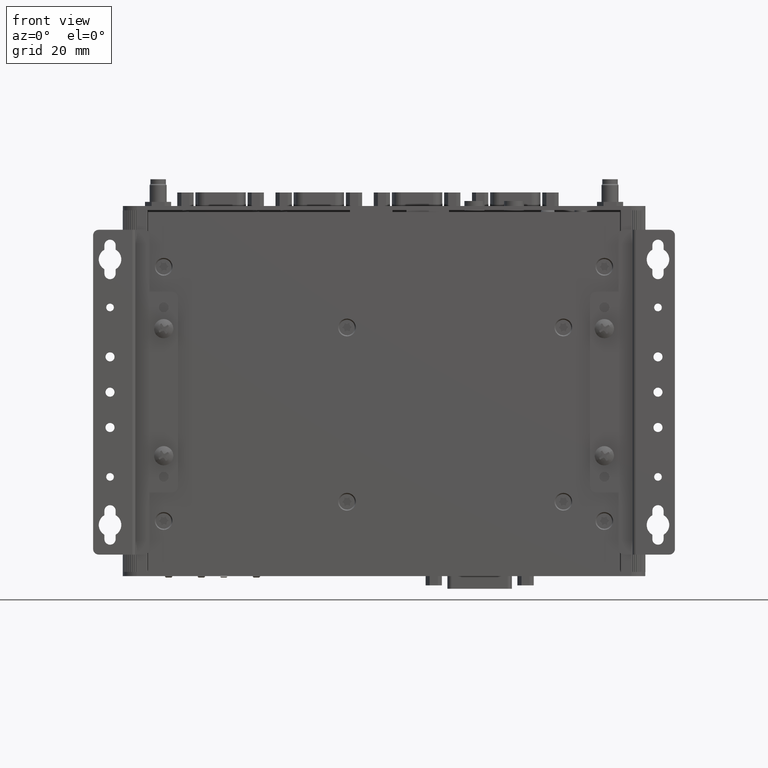
[diagram: clean part render]
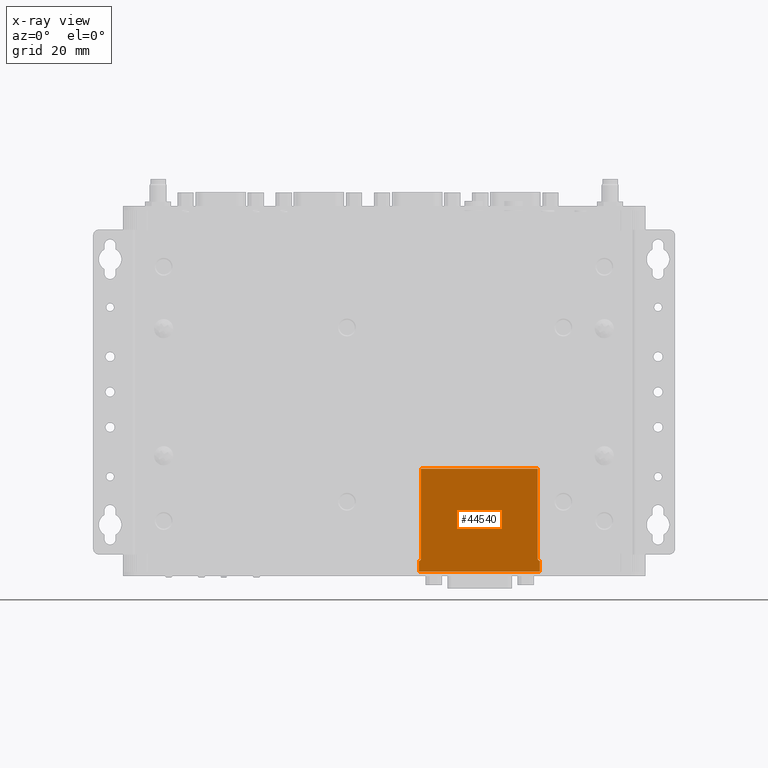
[diagram: x-ray — body ghosted, one internal face saturated and labeled with its STEP entity id]
A machine part, front view, then the same camera in x-ray: the body is ghosted and one INTERNAL B-rep face — a face not visible from any outside direction — is saturated and labeled: STEP entity #44540.
In plain terms, the highlighted planar face has unit normal (0, -1, 0).
Its self-contained STEP definition (entity closure, byte-faithful):
#8787 = VERTEX_POINT ( 'NONE', #72507 ) ;
#8807 = VERTEX_POINT ( 'NONE', #72522 ) ;
#8810 = VERTEX_POINT ( 'NONE', #72523 ) ;
#8815 = VERTEX_POINT ( 'NONE', #72528 ) ;
#8821 = VERTEX_POINT ( 'NONE', #72534 ) ;
#8930 = VERTEX_POINT ( 'NONE', #72628 ) ;
#8934 = VERTEX_POINT ( 'NONE', #72630 ) ;
#10135 = VERTEX_POINT ( 'NONE', #73311 ) ;
#10216 = VERTEX_POINT ( 'NONE', #73348 ) ;
#10673 = VERTEX_POINT ( 'NONE', #33440 ) ;
#23623 = EDGE_CURVE ( 'NONE', #8930, #10673, #60053, .T. ) ;
#23630 = EDGE_CURVE ( 'NONE', #8930, #8810, #60064, .T. ) ;
#23637 = EDGE_CURVE ( 'NONE', #8810, #8821, #60060, .T. ) ;
#23639 = EDGE_CURVE ( 'NONE', #8821, #10216, #60076, .T. ) ;
#23646 = EDGE_CURVE ( 'NONE', #10216, #8815, #60085, .T. ) ;
#23651 = EDGE_CURVE ( 'NONE', #8787, #8934, #60072, .T. ) ;
#23653 = EDGE_CURVE ( 'NONE', #8815, #8934, #60093, .T. ) ;
#23658 = EDGE_CURVE ( 'NONE', #8807, #8787, #60099, .T. ) ;
#23663 = EDGE_CURVE ( 'NONE', #10135, #10673, #60080, .T. ) ;
#23665 = EDGE_CURVE ( 'NONE', #10135, #8807, #60107, .T. ) ;
#24273 = EDGE_LOOP ( 'NONE', ( #58798, #58931, #59015, #58805, #58792, #59037, #59389, #59387, #59483, #59382 ) ) ;
#33440 = CARTESIAN_POINT ( 'NONE',  ( 40.73898553975588000, -14.01625482755553700, -125.5999999999813600 ) ) ;
#44540 = ADVANCED_FACE ( 'NONE', ( #82382 ), #82384, .F. ) ;
#44771 = AXIS2_PLACEMENT_3D ( 'NONE', #82366, #82388, #82390 ) ;
#58792 = ORIENTED_EDGE ( 'NONE', *, *, #23653, .F. ) ;
#58798 = ORIENTED_EDGE ( 'NONE', *, *, #23663, .F. ) ;
#58805 = ORIENTED_EDGE ( 'NONE', *, *, #23651, .T. ) ;
#58931 = ORIENTED_EDGE ( 'NONE', *, *, #23665, .T. ) ;
#59015 = ORIENTED_EDGE ( 'NONE', *, *, #23658, .T. ) ;
#59037 = ORIENTED_EDGE ( 'NONE', *, *, #23646, .F. ) ;
#59382 = ORIENTED_EDGE ( 'NONE', *, *, #23623, .T. ) ;
#59387 = ORIENTED_EDGE ( 'NONE', *, *, #23637, .F. ) ;
#59389 = ORIENTED_EDGE ( 'NONE', *, *, #23639, .F. ) ;
#59483 = ORIENTED_EDGE ( 'NONE', *, *, #23630, .F. ) ;
#60035 = CARTESIAN_POINT ( 'NONE',  ( 40.73898553975588000, -14.01625482755553700, -129.3999999999813600 ) ) ;
#60053 = LINE ( 'NONE', #60035, #94116 ) ;
#60058 = DIRECTION ( 'NONE',  ( 9.824270653263769600E-017, 0.0000000000000000000, 1.000000000000000000 ) ) ;
#60060 = LINE ( 'NONE', #60074, #94128 ) ;
#60064 = LINE ( 'NONE', #60065, #94126 ) ;
#60065 = CARTESIAN_POINT ( 'NONE',  ( 40.73898553975588000, -14.01625482755553700, -129.3999999999813600 ) ) ;
#60066 = DIRECTION ( 'NONE',  ( 1.000000000000000000, 0.0000000000000000000, -9.824270653263769600E-017 ) ) ;
#60072 = LINE ( 'NONE', #60091, #94132 ) ;
#60074 = CARTESIAN_POINT ( 'NONE',  ( 83.53898553975588500, -14.01625482755553700, -129.3999999999813600 ) ) ;
#60075 = DIRECTION ( 'NONE',  ( 9.824270653263769600E-017, 0.0000000000000000000, 1.000000000000000000 ) ) ;
#60076 = LINE ( 'NONE', #60077, #94130 ) ;
#60077 = CARTESIAN_POINT ( 'NONE',  ( 80.94118337337589300, -14.01625482755553700, -125.5999999999813600 ) ) ;
#60078 = DIRECTION ( 'NONE',  ( -1.000000000000000000, 0.0000000000000000000, 9.824270653263769600E-017 ) ) ;
#60080 = LINE ( 'NONE', #60105, #94135 ) ;
#60085 = LINE ( 'NONE', #60086, #94133 ) ;
#60086 = CARTESIAN_POINT ( 'NONE',  ( 82.73653900389588500, -14.01625482755553700, -125.0425534641234600 ) ) ;
#60087 = DIRECTION ( 'NONE',  ( -0.7071067811808211500, 0.0000000000000000000, 0.7071067811922739900 ) ) ;
#60091 = CARTESIAN_POINT ( 'NONE',  ( 40.73898553975588800, -14.01625482755553700, -92.99999999998134100 ) ) ;
#60092 = DIRECTION ( 'NONE',  ( 1.000000000000000000, 0.0000000000000000000, -9.824270653263769600E-017 ) ) ;
#60093 = LINE ( 'NONE', #60094, #94136 ) ;
#60094 = CARTESIAN_POINT ( 'NONE',  ( 82.79398553975589400, -14.01625482755553700, -125.8059999999789700 ) ) ;
#60095 = DIRECTION ( 'NONE',  ( 9.824270653263769600E-017, 0.0000000000000000000, 1.000000000000000000 ) ) ;
#60099 = LINE ( 'NONE', #60100, #94138 ) ;
#60100 = CARTESIAN_POINT ( 'NONE',  ( 41.38398553975587600, -14.01625482755553700, -91.33599999998136800 ) ) ;
#60101 = DIRECTION ( 'NONE',  ( 9.824270653263769600E-017, 0.0000000000000000000, 1.000000000000000000 ) ) ;
#60105 = CARTESIAN_POINT ( 'NONE',  ( 37.79274386963586400, -14.01625482755553700, -125.5999999999813600 ) ) ;
#60106 = DIRECTION ( 'NONE',  ( -1.000000000000000000, 0.0000000000000000000, 9.824270653263769600E-017 ) ) ;
#60107 = LINE ( 'NONE', #60108, #94141 ) ;
#60108 = CARTESIAN_POINT ( 'NONE',  ( 41.54159675577587100, -14.01625482755553700, -125.0423887839598800 ) ) ;
#60109 = DIRECTION ( 'NONE',  ( 0.7071067811787293800, -0.0000000000000000000, 0.7071067811943657600 ) ) ;
#72507 = CARTESIAN_POINT ( 'NONE',  ( 41.38398553975587600, -14.01625482755553700, -92.99999999998134100 ) ) ;
#72522 = CARTESIAN_POINT ( 'NONE',  ( 41.38398553975587600, -14.01625482755553500, -125.1999999999809600 ) ) ;
#72523 = CARTESIAN_POINT ( 'NONE',  ( 83.53898553975588500, -14.01625482755553700, -129.3999999999813600 ) ) ;
#72528 = CARTESIAN_POINT ( 'NONE',  ( 82.79398553975453000, -14.01625482755553500, -125.0999999999803400 ) ) ;
#72534 = CARTESIAN_POINT ( 'NONE',  ( 83.53898553975588500, -14.01625482755553700, -125.5999999999813600 ) ) ;
#72628 = CARTESIAN_POINT ( 'NONE',  ( 40.73898553975588000, -14.01625482755553700, -129.3999999999813600 ) ) ;
#72630 = CARTESIAN_POINT ( 'NONE',  ( 82.79398553975589400, -14.01625482755553700, -92.99999999998134100 ) ) ;
#73311 = CARTESIAN_POINT ( 'NONE',  ( 40.98398553975587800, -14.01625482755553700, -125.5999999999813600 ) ) ;
#73348 = CARTESIAN_POINT ( 'NONE',  ( 83.29398553975588000, -14.01625482755553700, -125.5999999999813600 ) ) ;
#82366 = CARTESIAN_POINT ( 'NONE',  ( 40.73898553975588000, -14.01625482755553700, -129.3999999999813600 ) ) ;
#82382 = FACE_OUTER_BOUND ( 'NONE', #24273, .T. ) ;
#82384 = PLANE ( 'NONE',  #44771 ) ;
#82388 = DIRECTION ( 'NONE',  ( 0.0000000000000000000, -1.000000000000000000, 0.0000000000000000000 ) ) ;
#82390 = DIRECTION ( 'NONE',  ( -1.000000000000000000, 0.0000000000000000000, 9.824270653263769600E-017 ) ) ;
#94116 = VECTOR ( 'NONE', #60058, 1000.000000000000000 ) ;
#94126 = VECTOR ( 'NONE', #60066, 1000.000000000000000 ) ;
#94128 = VECTOR ( 'NONE', #60075, 1000.000000000000000 ) ;
#94130 = VECTOR ( 'NONE', #60078, 1000.000000000000000 ) ;
#94132 = VECTOR ( 'NONE', #60092, 1000.000000000000000 ) ;
#94133 = VECTOR ( 'NONE', #60087, 1000.000000000000000 ) ;
#94135 = VECTOR ( 'NONE', #60106, 1000.000000000000000 ) ;
#94136 = VECTOR ( 'NONE', #60095, 1000.000000000000000 ) ;
#94138 = VECTOR ( 'NONE', #60101, 1000.000000000000000 ) ;
#94141 = VECTOR ( 'NONE', #60109, 1000.000000000000100 ) ;